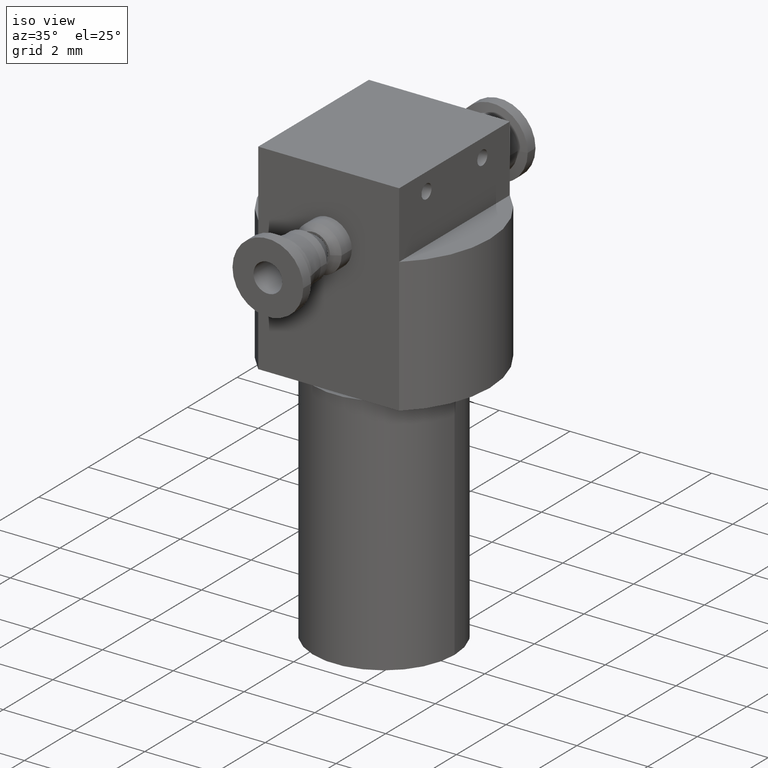
[diagram: clean part render]
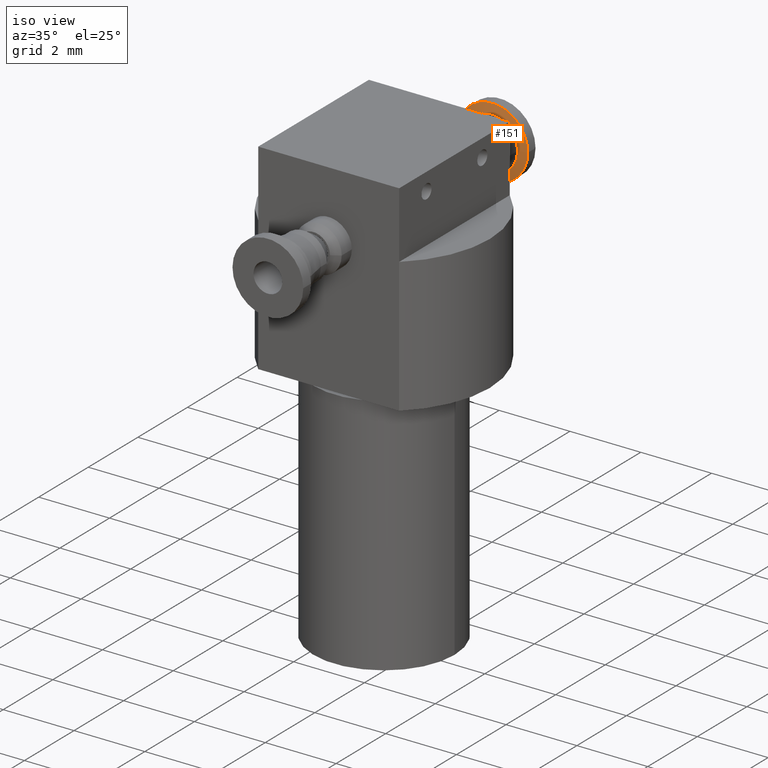
[diagram: same view with one face highlighted and labeled with its STEP entity id]
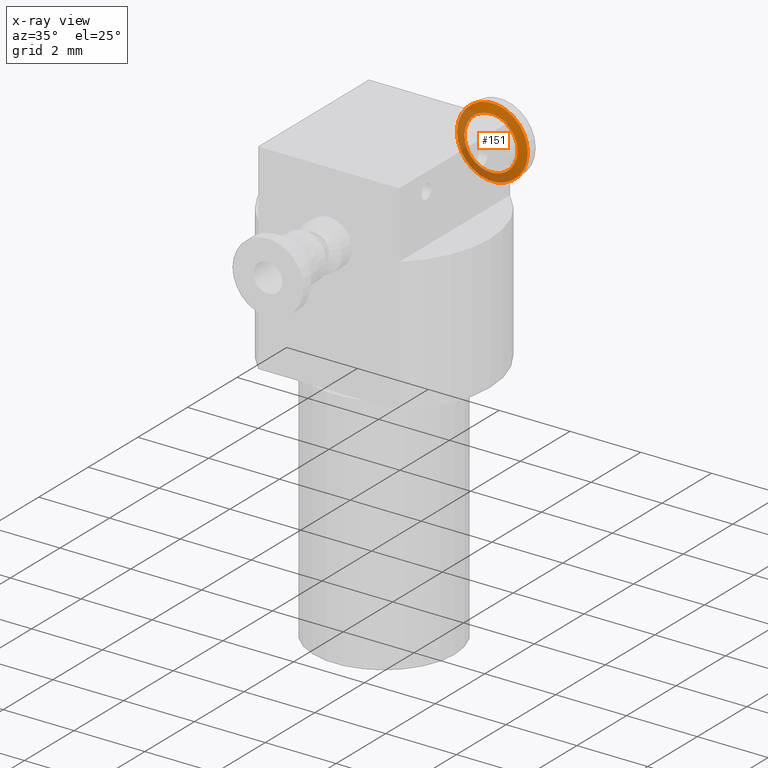
[diagram: x-ray of the same camera — body ghosted, the highlighted face saturated]
A machine part, iso view. The second image highlights one B-rep face of the part: STEP entity #151.
The next image is the same camera in x-ray: the body ghosted, the highlighted face saturated — about 45% of this face is hidden behind the body in this view.
In plain terms, the highlighted conical surface has half-angle 78.007 deg.
Its self-contained STEP definition (entity closure, byte-faithful):
#151 = ADVANCED_FACE('',(#152),#165,.T.);
#152 = FACE_BOUND('',#153,.T.);
#153 = EDGE_LOOP('',(#154,#188,#210,#237));
#154 = ORIENTED_EDGE('',*,*,#155,.F.);
#155 = EDGE_CURVE('',#156,#156,#158,.T.);
#156 = VERTEX_POINT('',#157);
#157 = CARTESIAN_POINT('',(3.903106860388,4.317153930664,11.578411163388
    ));
#158 = SURFACE_CURVE('',#159,(#164,#176),.PCURVE_S1.);
#159 = CIRCLE('',#160,0.75);
#160 = AXIS2_PLACEMENT_3D('',#161,#162,#163);
#161 = CARTESIAN_POINT('',(3.153106860388,4.317153930664,11.578411163388
    ));
#162 = DIRECTION('',(0.,-1.,0.));
#163 = DIRECTION('',(1.,0.,0.));
#164 = PCURVE('',#165,#170);
#165 = CONICAL_SURFACE('',#166,0.75,1.361476223841);
#166 = AXIS2_PLACEMENT_3D('',#167,#168,#169);
#167 = CARTESIAN_POINT('',(3.153106860388,4.317153930664,11.578411163388
    ));
#168 = DIRECTION('',(0.,1.,0.));
#169 = DIRECTION('',(1.,0.,0.));
#170 = DEFINITIONAL_REPRESENTATION('',(#171),#175);
#171 = LINE('',#172,#173);
#172 = CARTESIAN_POINT('',(6.28318530718,0.));
#173 = VECTOR('',#174,1.);
#174 = DIRECTION('',(-1.,0.));
#175 = ( GEOMETRIC_REPRESENTATION_CONTEXT(2) 
PARAMETRIC_REPRESENTATION_CONTEXT() REPRESENTATION_CONTEXT('2D SPACE',''
  ) );
#176 = PCURVE('',#177,#182);
#177 = CYLINDRICAL_SURFACE('',#178,0.75);
#178 = AXIS2_PLACEMENT_3D('',#179,#180,#181);
#179 = CARTESIAN_POINT('',(3.153106860388,4.317153930664,11.578411163388
    ));
#180 = DIRECTION('',(0.,-1.,0.));
#181 = DIRECTION('',(1.,0.,0.));
#182 = DEFINITIONAL_REPRESENTATION('',(#183),#187);
#183 = LINE('',#184,#185);
#184 = CARTESIAN_POINT('',(0.,0.));
#185 = VECTOR('',#186,1.);
#186 = DIRECTION('',(1.,0.));
#187 = ( GEOMETRIC_REPRESENTATION_CONTEXT(2) 
PARAMETRIC_REPRESENTATION_CONTEXT() REPRESENTATION_CONTEXT('2D SPACE',''
  ) );
#188 = ORIENTED_EDGE('',*,*,#189,.T.);
#189 = EDGE_CURVE('',#156,#190,#192,.T.);
#190 = VERTEX_POINT('',#191);
#191 = CARTESIAN_POINT('',(4.153106860388,4.370261871338,11.578411163388
    ));
#192 = SEAM_CURVE('',#193,(#196,#203),.PCURVE_S1.);
#193 = B_SPLINE_CURVE_WITH_KNOTS('',1,(#194,#195),.UNSPECIFIED.,.F.,.F.,
  (2,2),(0.,0.255578663747),.PIECEWISE_BEZIER_KNOTS.);
#194 = CARTESIAN_POINT('',(3.903106860388,4.317153930664,11.578411163388
    ));
#195 = CARTESIAN_POINT('',(4.153106860388,4.370261871338,11.578411163388
    ));
#196 = PCURVE('',#165,#197);
#197 = DEFINITIONAL_REPRESENTATION('',(#198),#202);
#198 = LINE('',#199,#200);
#199 = CARTESIAN_POINT('',(6.28318530718,0.));
#200 = VECTOR('',#201,1.);
#201 = DIRECTION('',(0.,1.));
#202 = ( GEOMETRIC_REPRESENTATION_CONTEXT(2) 
PARAMETRIC_REPRESENTATION_CONTEXT() REPRESENTATION_CONTEXT('2D SPACE',''
  ) );
#203 = PCURVE('',#165,#204);
#204 = DEFINITIONAL_REPRESENTATION('',(#205),#209);
#205 = LINE('',#206,#207);
#206 = CARTESIAN_POINT('',(0.,0.));
#207 = VECTOR('',#208,1.);
#208 = DIRECTION('',(0.,1.));
#209 = ( GEOMETRIC_REPRESENTATION_CONTEXT(2) 
PARAMETRIC_REPRESENTATION_CONTEXT() REPRESENTATION_CONTEXT('2D SPACE',''
  ) );
#210 = ORIENTED_EDGE('',*,*,#211,.F.);
#211 = EDGE_CURVE('',#190,#190,#212,.T.);
#212 = SURFACE_CURVE('',#213,(#218,#225),.PCURVE_S1.);
#213 = CIRCLE('',#214,1.);
#214 = AXIS2_PLACEMENT_3D('',#215,#216,#217);
#215 = CARTESIAN_POINT('',(3.153106860388,4.370261871338,11.578411163388
    ));
#216 = DIRECTION('',(-0.,1.,0.));
#217 = DIRECTION('',(1.,0.,0.));
#218 = PCURVE('',#165,#219);
#219 = DEFINITIONAL_REPRESENTATION('',(#220),#224);
#220 = LINE('',#221,#222);
#221 = CARTESIAN_POINT('',(0.,5.310794067383E-02));
#222 = VECTOR('',#223,1.);
#223 = DIRECTION('',(1.,0.));
#224 = ( GEOMETRIC_REPRESENTATION_CONTEXT(2) 
PARAMETRIC_REPRESENTATION_CONTEXT() REPRESENTATION_CONTEXT('2D SPACE',''
  ) );
#225 = PCURVE('',#226,#231);
#226 = CYLINDRICAL_SURFACE('',#227,1.);
#227 = AXIS2_PLACEMENT_3D('',#228,#229,#230);
#228 = CARTESIAN_POINT('',(3.153106860388,4.683261871338,11.578411163388
    ));
#229 = DIRECTION('',(0.,-1.,0.));
#230 = DIRECTION('',(1.,0.,0.));
#231 = DEFINITIONAL_REPRESENTATION('',(#232),#236);
#232 = LINE('',#233,#234);
#233 = CARTESIAN_POINT('',(6.28318530718,0.313));
#234 = VECTOR('',#235,1.);
#235 = DIRECTION('',(-1.,0.));
#236 = ( GEOMETRIC_REPRESENTATION_CONTEXT(2) 
PARAMETRIC_REPRESENTATION_CONTEXT() REPRESENTATION_CONTEXT('2D SPACE',''
  ) );
#237 = ORIENTED_EDGE('',*,*,#189,.F.);